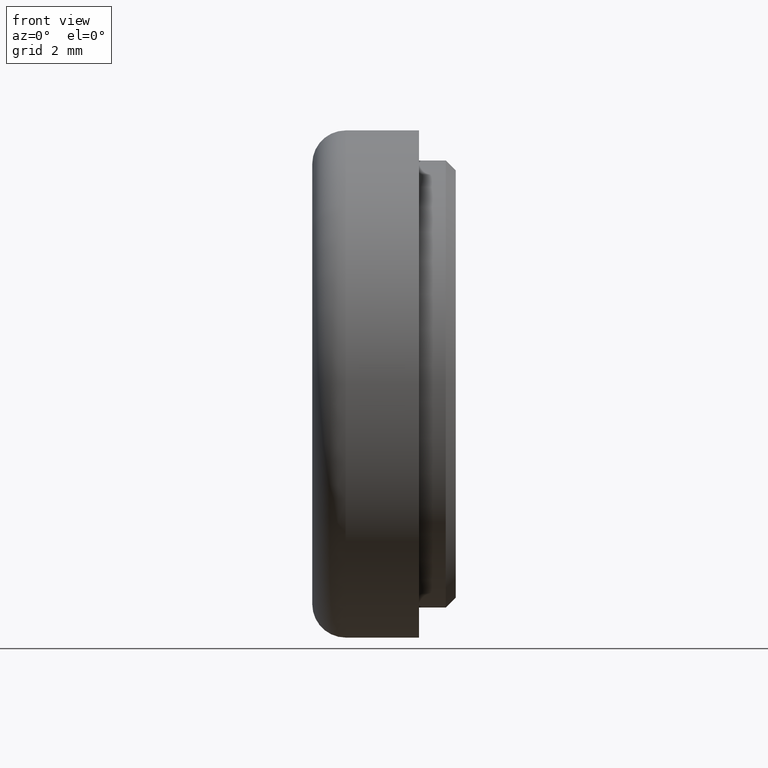
[diagram: clean part render]
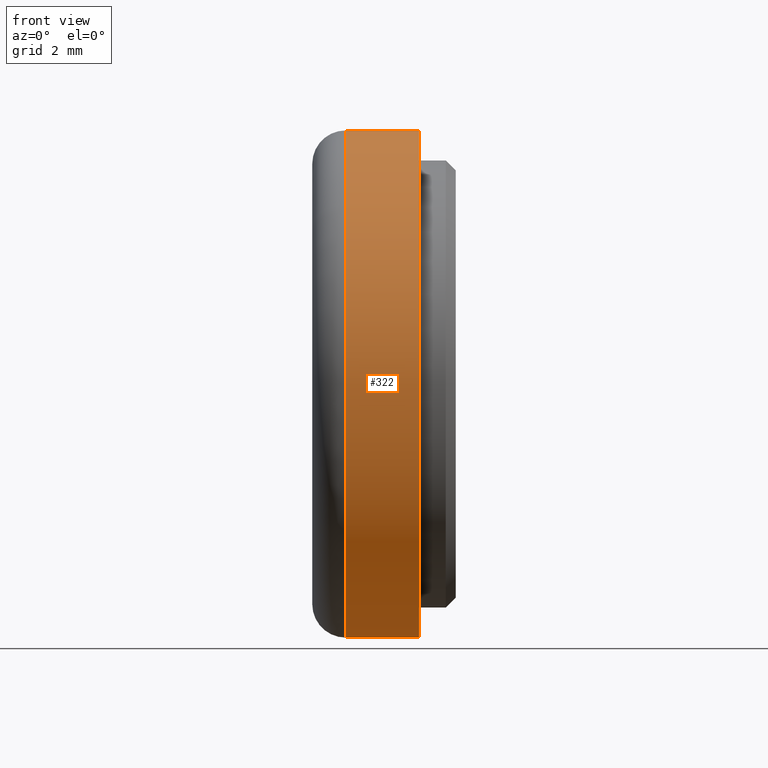
[diagram: same view with one face highlighted and labeled with its STEP entity id]
A machine part, front view. The second image highlights one B-rep face of the part: STEP entity #322.
In plain terms, the highlighted cylindrical surface (partial cylindrical patch) has radius 7.6 mm, axis along (-1, -0, -0).
Its self-contained STEP definition (entity closure, byte-faithful):
#44 = VECTOR ( 'NONE', #381, 1000.000000000000000 ) ;
#47 = LINE ( 'NONE', #278, #69 ) ;
#53 = CARTESIAN_POINT ( 'NONE',  ( 3.200000000000000200, 0.0000000000000000000, 0.0000000000000000000 ) ) ;
#58 = FACE_OUTER_BOUND ( 'NONE', #539, .T. ) ;
#62 = ORIENTED_EDGE ( 'NONE', *, *, #328, .F. ) ;
#67 = EDGE_CURVE ( 'NONE', #535, #630, #686, .T. ) ;
#69 = VECTOR ( 'NONE', #612, 1000.000000000000000 ) ;
#74 = CARTESIAN_POINT ( 'NONE',  ( 3.200000000000000200, 9.307315673519885500E-016, -7.599999999999999600 ) ) ;
#167 = LINE ( 'NONE', #74, #44 ) ;
#180 = VERTEX_POINT ( 'NONE', #287 ) ;
#196 = VERTEX_POINT ( 'NONE', #609 ) ;
#257 = CARTESIAN_POINT ( 'NONE',  ( 1.000000000000000000, 0.0000000000000000000, 7.599999999999999600 ) ) ;
#278 = CARTESIAN_POINT ( 'NONE',  ( 3.200000000000000200, 0.0000000000000000000, 7.599999999999999600 ) ) ;
#287 = CARTESIAN_POINT ( 'NONE',  ( 3.200000000000000200, 0.0000000000000000000, 7.599999999999999600 ) ) ;
#296 = ORIENTED_EDGE ( 'NONE', *, *, #711, .F. ) ;
#306 = DIRECTION ( 'NONE',  ( 1.000000000000000000, 0.0000000000000000000, 0.0000000000000000000 ) ) ;
#322 = ADVANCED_FACE ( 'NONE', ( #58 ), #708, .T. ) ;
#328 = EDGE_CURVE ( 'NONE', #180, #196, #683, .T. ) ;
#329 = DIRECTION ( 'NONE',  ( 0.0000000000000000000, 0.0000000000000000000, -1.000000000000000000 ) ) ;
#360 = ORIENTED_EDGE ( 'NONE', *, *, #67, .T. ) ;
#381 = DIRECTION ( 'NONE',  ( -1.000000000000000000, -0.0000000000000000000, -0.0000000000000000000 ) ) ;
#388 = DIRECTION ( 'NONE',  ( 1.000000000000000000, 0.0000000000000000000, 0.0000000000000000000 ) ) ;
#412 = AXIS2_PLACEMENT_3D ( 'NONE', #53, #388, #421 ) ;
#421 = DIRECTION ( 'NONE',  ( 0.0000000000000000000, 0.0000000000000000000, -1.000000000000000000 ) ) ;
#444 = CARTESIAN_POINT ( 'NONE',  ( 1.000000000000000000, 0.0000000000000000000, 0.0000000000000000000 ) ) ;
#468 = EDGE_CURVE ( 'NONE', #180, #535, #47, .T. ) ;
#492 = AXIS2_PLACEMENT_3D ( 'NONE', #444, #306, #329 ) ;
#498 = AXIS2_PLACEMENT_3D ( 'NONE', #703, #586, #715 ) ;
#499 = ORIENTED_EDGE ( 'NONE', *, *, #468, .T. ) ;
#535 = VERTEX_POINT ( 'NONE', #257 ) ;
#539 = EDGE_LOOP ( 'NONE', ( #296, #62, #499, #360 ) ) ;
#545 = CARTESIAN_POINT ( 'NONE',  ( 1.000000000000000000, 9.307315673519885500E-016, -7.599999999999999600 ) ) ;
#586 = DIRECTION ( 'NONE',  ( -1.000000000000000000, -0.0000000000000000000, -0.0000000000000000000 ) ) ;
#609 = CARTESIAN_POINT ( 'NONE',  ( 3.200000000000000200, 9.307315673519885500E-016, -7.599999999999999600 ) ) ;
#612 = DIRECTION ( 'NONE',  ( -1.000000000000000000, -0.0000000000000000000, -0.0000000000000000000 ) ) ;
#630 = VERTEX_POINT ( 'NONE', #545 ) ;
#683 = CIRCLE ( 'NONE', #412, 7.599999999999999600 ) ;
#686 = CIRCLE ( 'NONE', #492, 7.599999999999999600 ) ;
#703 = CARTESIAN_POINT ( 'NONE',  ( 3.200000000000000200, 0.0000000000000000000, 0.0000000000000000000 ) ) ;
#708 = CYLINDRICAL_SURFACE ( 'NONE', #498, 7.599999999999999600 ) ;
#711 = EDGE_CURVE ( 'NONE', #196, #630, #167, .T. ) ;
#715 = DIRECTION ( 'NONE',  ( 0.0000000000000000000, 0.0000000000000000000, 1.000000000000000000 ) ) ;